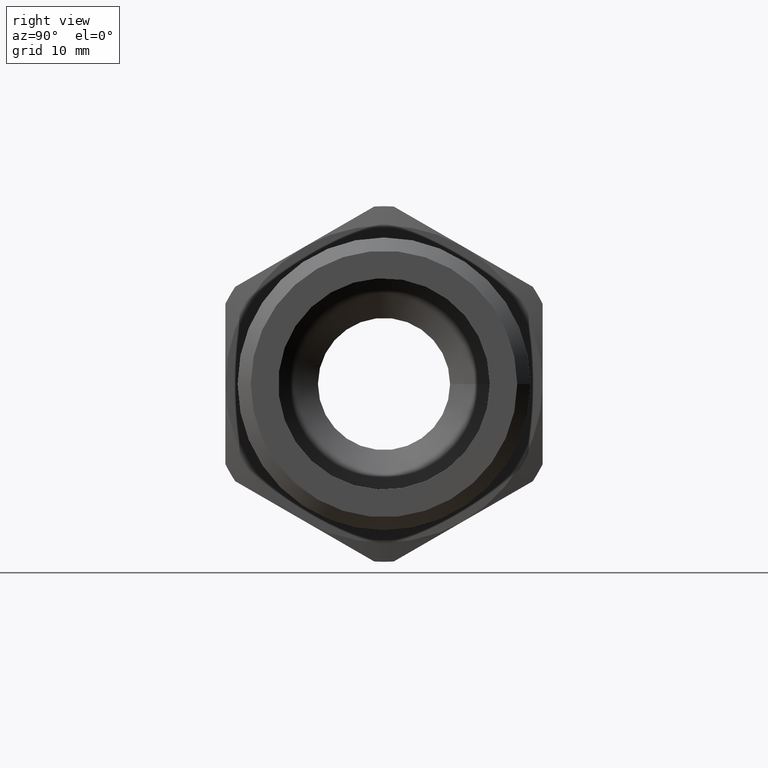
[diagram: clean part render]
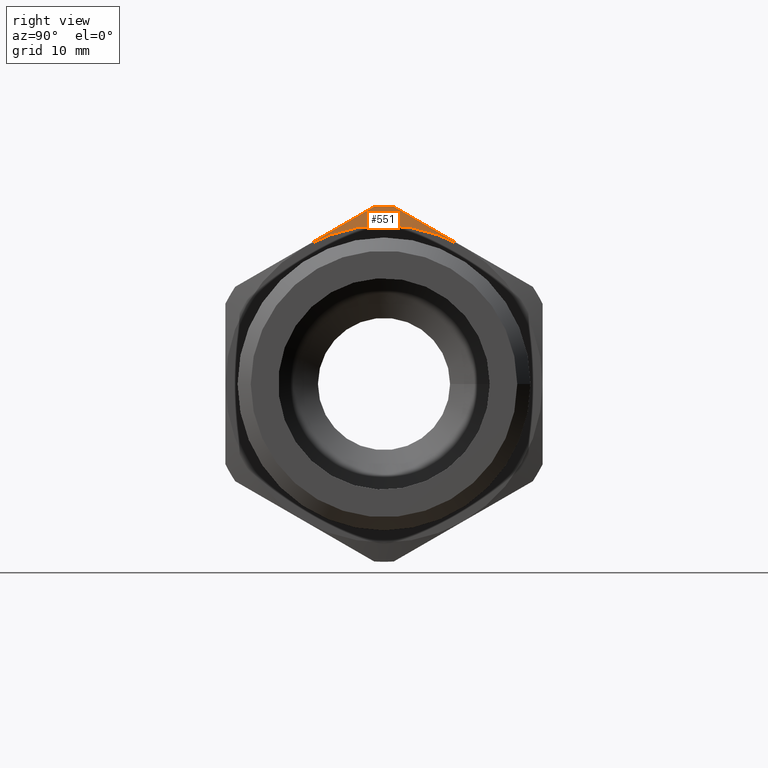
[diagram: same view with one face highlighted and labeled with its STEP entity id]
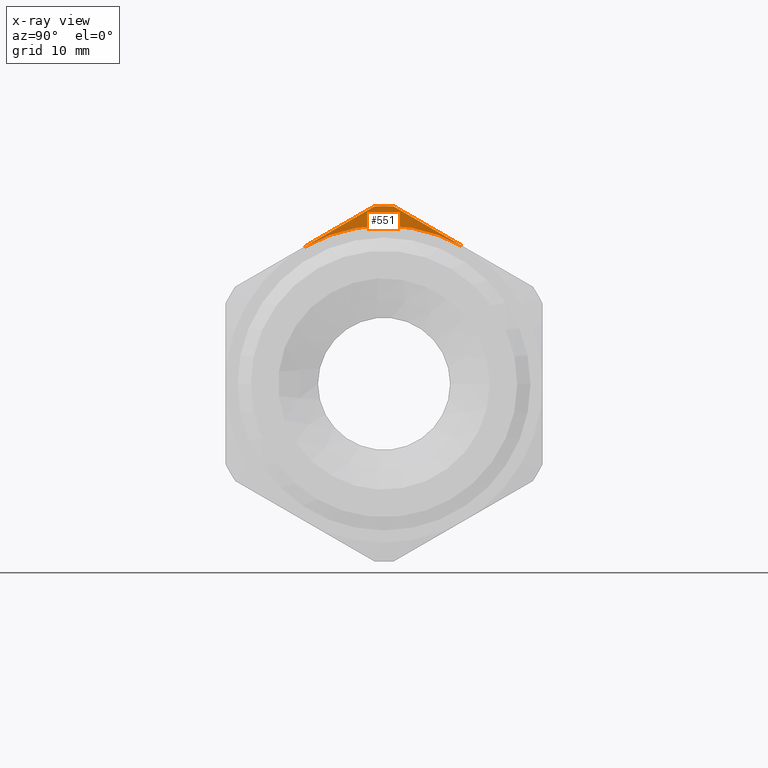
[diagram: x-ray of the same camera — body ghosted, the highlighted face saturated]
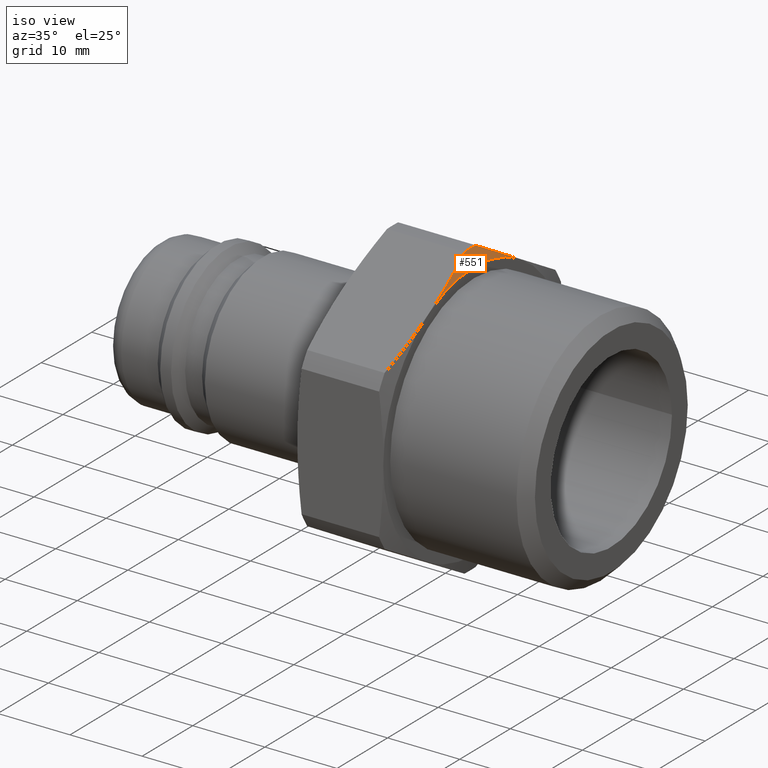
[diagram: same view with one face highlighted and labeled with its STEP entity id]
A machine part, right view. The second image highlights one B-rep face of the part: STEP entity #551.
The next image is the same camera in x-ray: the body ghosted, the highlighted face saturated — about 0% of this face is hidden behind the body in this view.
A second angle (iso view) of the same face is appended — the face is thin or edge-on in the first view.
In plain terms, the highlighted conical surface has half-angle 75 deg.
Its self-contained STEP definition (entity closure, byte-faithful):
#350=CARTESIAN_POINT('',(43.999999999999993,-8.999999999999996,15.5884572681199));
#351=VERTEX_POINT('',#350);
#365=CARTESIAN_POINT('',(43.417210506462297,-1.108677629826538,20.144514362801658));
#366=VERTEX_POINT('',#365);
#367=CARTESIAN_POINT('',(43.417210506462297,-1.108677629826513,20.144514362801672));
#368=CARTESIAN_POINT('',(44.0,-5.27914072919128,17.736696369738027));
#369=CARTESIAN_POINT('',(43.999999999999993,-8.999999999999996,15.5884572681199));
#377=(BOUNDED_CURVE()B_SPLINE_CURVE(2,(#367,#368,#369),.UNSPECIFIED.,.F.,.U.)B_SPLINE_CURVE_WITH_KNOTS((3,3),(0.0,0.913497495889395),.UNSPECIFIED.)CURVE()GEOMETRIC_REPRESENTATION_ITEM()RATIONAL_B_SPLINE_CURVE((1.0,1.029765345438745,1.0))REPRESENTATION_ITEM(''));
#378=EDGE_CURVE('',#366,#351,#377,.T.);
#426=CARTESIAN_POINT('',(43.417210506462297,1.108677629826546,20.144514362801658));
#427=VERTEX_POINT('',#426);
#434=CARTESIAN_POINT('',(43.999999999999993,9.000000000000002,15.588457268119896));
#435=VERTEX_POINT('',#434);
#436=CARTESIAN_POINT('',(43.999999999999993,9.000000000000002,15.588457268119896));
#437=CARTESIAN_POINT('',(44.0,5.279140729191284,17.736696369738024));
#438=CARTESIAN_POINT('',(43.417210506462297,1.108677629826516,20.144514362801672));
#446=(BOUNDED_CURVE()B_SPLINE_CURVE(2,(#436,#437,#438),.UNSPECIFIED.,.F.,.U.)B_SPLINE_CURVE_WITH_KNOTS((3,3),(0.913497495889395,1.82699499177879),.UNSPECIFIED.)CURVE()GEOMETRIC_REPRESENTATION_ITEM()RATIONAL_B_SPLINE_CURVE((1.0,1.029765345438759,1.0))REPRESENTATION_ITEM(''));
#447=EDGE_CURVE('',#435,#427,#446,.T.);
#528=CARTESIAN_POINT('',(43.708605253231156,0.0,0.0));
#529=DIRECTION('',(-1.0,0.0,0.0));
#530=DIRECTION('',(0.0,1.0,0.0));
#531=AXIS2_PLACEMENT_3D('',#528,#529,#530);
#532=CONICAL_SURFACE('',#531,19.087499999999999,74.999999999999957);
#533=ORIENTED_EDGE('',*,*,#378,.T.);
#534=CARTESIAN_POINT('',(43.999999999999993,0.0,0.0));
#535=DIRECTION('',(1.0,0.0,0.0));
#536=DIRECTION('',(0.0,1.0,0.0));
#537=AXIS2_PLACEMENT_3D('',#534,#535,#536);
#538=CIRCLE('',#537,18.0);
#539=EDGE_CURVE('',#435,#351,#538,.T.);
#540=ORIENTED_EDGE('',*,*,#539,.F.);
#541=ORIENTED_EDGE('',*,*,#447,.T.);
#542=CARTESIAN_POINT('',(43.417210506462297,0.0,0.0));
#543=DIRECTION('',(1.0,0.0,0.0));
#544=DIRECTION('',(0.0,1.0,0.0));
#545=AXIS2_PLACEMENT_3D('',#542,#543,#544);
#546=CIRCLE('',#545,20.175000000000001);
#547=EDGE_CURVE('',#427,#366,#546,.T.);
#548=ORIENTED_EDGE('',*,*,#547,.T.);
#549=EDGE_LOOP('',(#533,#540,#541,#548));
#550=FACE_OUTER_BOUND('',#549,.T.);
#551=ADVANCED_FACE('',(#550),#532,.T.);